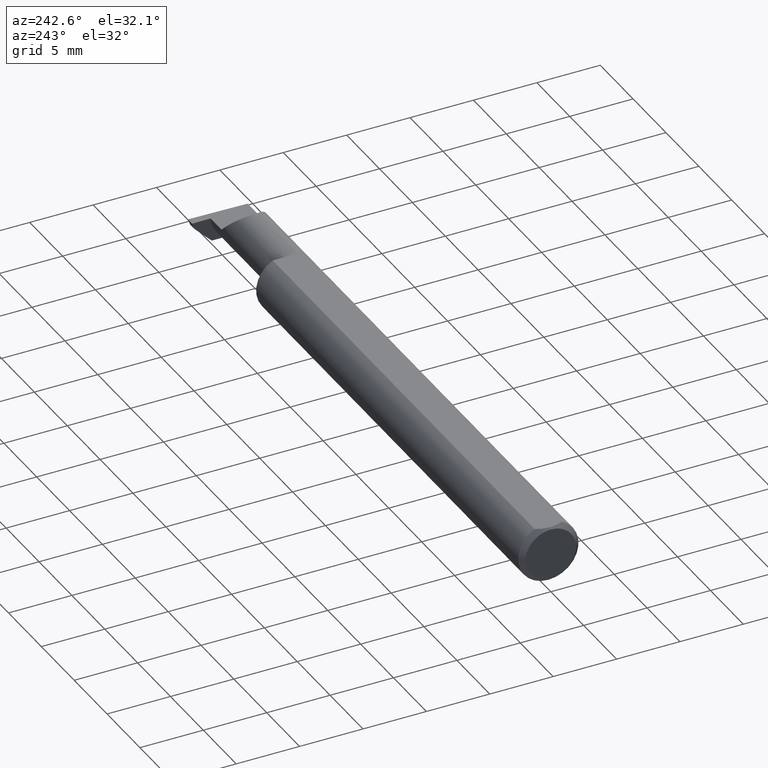
[diagram: clean part render]
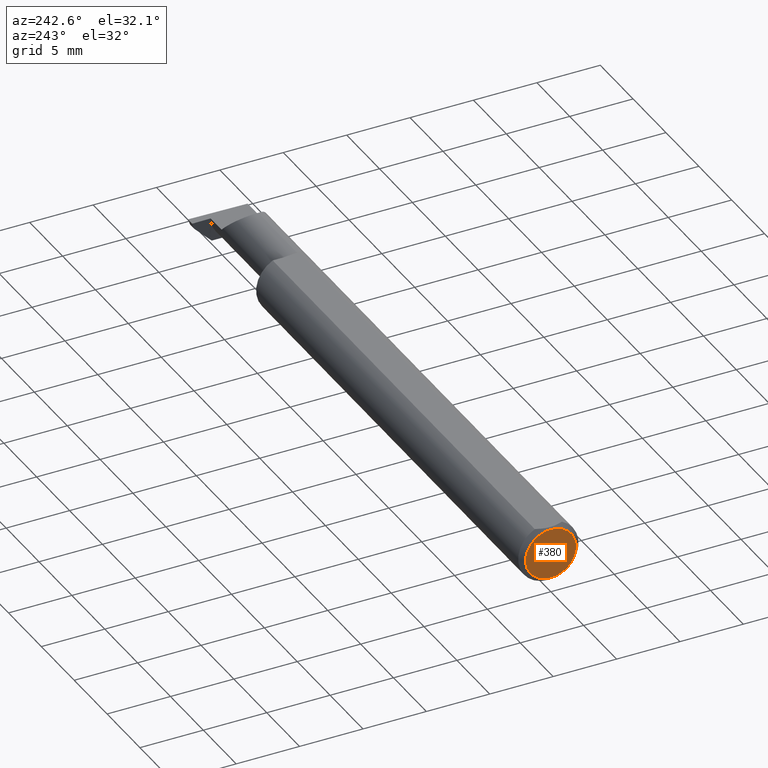
[diagram: same view with one face highlighted and labeled with its STEP entity id]
A machine part, auxiliary view. The second image highlights one B-rep face of the part: STEP entity #380.
In plain terms, the highlighted planar face has unit normal (1, 0, 0).
Its self-contained STEP definition (entity closure, byte-faithful):
#11 = CARTESIAN_POINT ( 'NONE',  ( 0.000000000000000000, 0.000000000000000000, 0.000000000000000000 ) ) ;
#32 = DIRECTION ( 'NONE',  ( 0.000000000000000000, 0.000000000000000000, 1.000000000000000000 ) ) ;
#71 = DIRECTION ( 'NONE',  ( -1.000000000000000000, -0.000000000000000000, -0.000000000000000000 ) ) ;
#75 = DIRECTION ( 'NONE',  ( -1.000000000000000000, -0.000000000000000000, -0.000000000000000000 ) ) ;
#101 = FACE_OUTER_BOUND ( 'NONE', #630, .T. ) ;
#128 = EDGE_CURVE ( 'NONE', #154, #614, #475, .T. ) ;
#154 = VERTEX_POINT ( 'NONE', #782 ) ;
#177 = CARTESIAN_POINT ( 'NONE',  ( 0.000000000000000000, 0.000000000000000000, 0.000000000000000000 ) ) ;
#247 = EDGE_CURVE ( 'NONE', #614, #154, #601, .T. ) ;
#289 = DIRECTION ( 'NONE',  ( 1.000000000000000000, 0.000000000000000000, 0.000000000000000000 ) ) ;
#305 = AXIS2_PLACEMENT_3D ( 'NONE', #177, #289, #577 ) ;
#315 = ORIENTED_EDGE ( 'NONE', *, *, #247, .T. ) ;
#345 = PLANE ( 'NONE',  #305 ) ;
#380 = ADVANCED_FACE ( 'NONE', ( #101 ), #345, .F. ) ;
#382 = DIRECTION ( 'NONE',  ( 0.000000000000000000, 0.000000000000000000, 1.000000000000000000 ) ) ;
#437 = CARTESIAN_POINT ( 'NONE',  ( 0.000000000000000000, 0.000000000000000000, -0.07860000000000001708 ) ) ;
#447 = CARTESIAN_POINT ( 'NONE',  ( 0.000000000000000000, 0.000000000000000000, 0.000000000000000000 ) ) ;
#475 = CIRCLE ( 'NONE', #744, 0.07860000000000001708 ) ;
#556 = ORIENTED_EDGE ( 'NONE', *, *, #128, .T. ) ;
#577 = DIRECTION ( 'NONE',  ( 0.000000000000000000, 0.000000000000000000, -1.000000000000000000 ) ) ;
#601 = CIRCLE ( 'NONE', #719, 0.07860000000000001708 ) ;
#614 = VERTEX_POINT ( 'NONE', #437 ) ;
#630 = EDGE_LOOP ( 'NONE', ( #315, #556 ) ) ;
#719 = AXIS2_PLACEMENT_3D ( 'NONE', #447, #75, #32 ) ;
#744 = AXIS2_PLACEMENT_3D ( 'NONE', #11, #71, #382 ) ;
#782 = CARTESIAN_POINT ( 'NONE',  ( 0.000000000000000000, 1.054420894065871180E-17, 0.07860000000000001708 ) ) ;